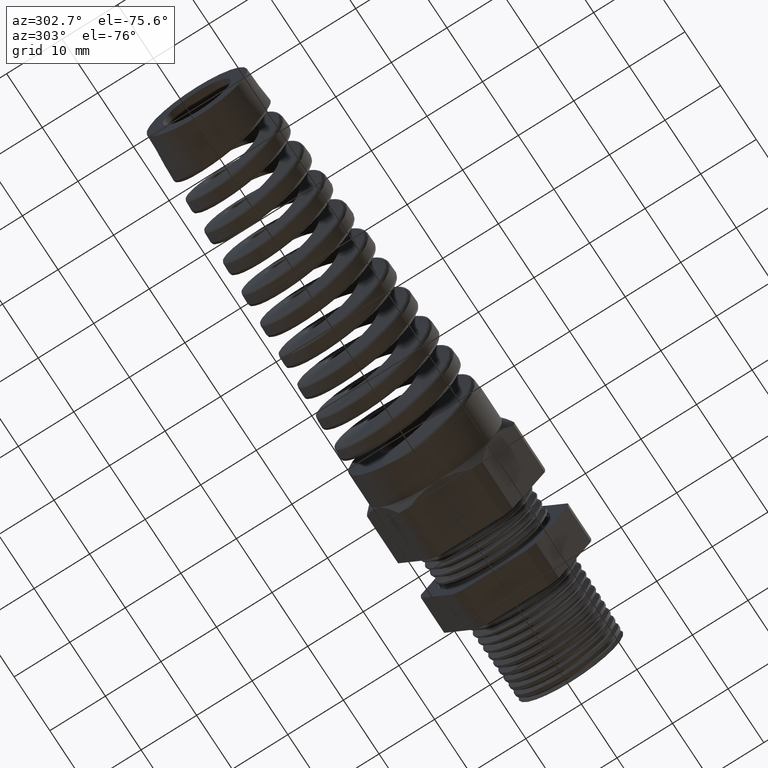
[diagram: clean part render]
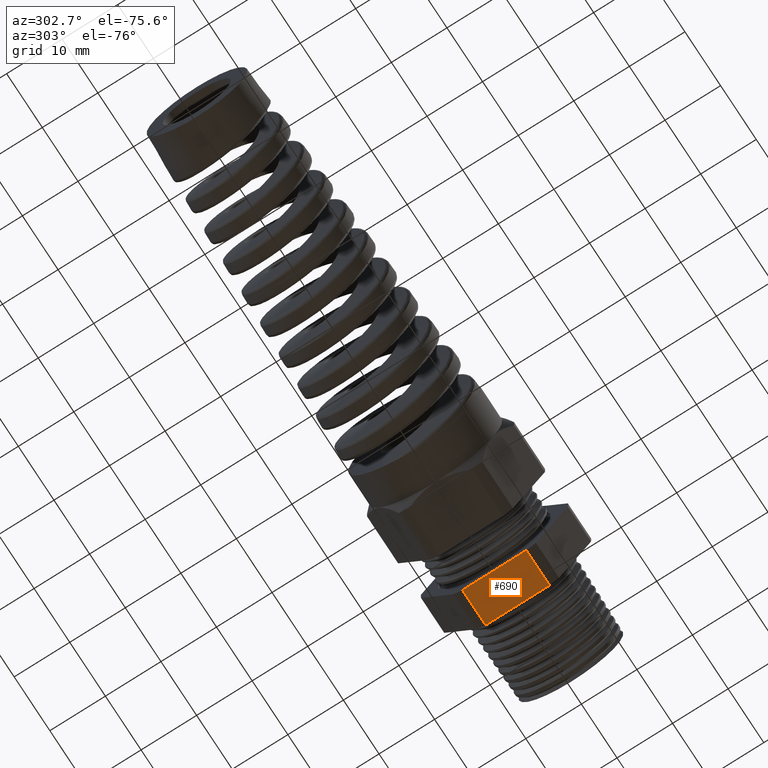
[diagram: same view with one face highlighted and labeled with its STEP entity id]
A machine part, auxiliary view. The second image highlights one B-rep face of the part: STEP entity #690.
In plain terms, the highlighted planar face has unit normal (0, 0, -1).
Its self-contained STEP definition (entity closure, byte-faithful):
#41 = VERTEX_POINT ( 'NONE', #1199 ) ;
#44 = EDGE_CURVE ( 'NONE', #41, #45, #1193, .T. ) ;
#45 = VERTEX_POINT ( 'NONE', #1189 ) ;
#636 = EDGE_CURVE ( 'NONE', #41, #832, #2152, .T. ) ;
#676 = EDGE_LOOP ( 'NONE', ( #691, #692, #693, #695 ) ) ;
#690 = ADVANCED_FACE ( 'NONE', ( #2522 ), #2509, .T. ) ;
#691 = ORIENTED_EDGE ( 'NONE', *, *, #636, .T. ) ;
#692 = ORIENTED_EDGE ( 'NONE', *, *, #845, .F. ) ;
#693 = ORIENTED_EDGE ( 'NONE', *, *, #694, .F. ) ;
#694 = EDGE_CURVE ( 'NONE', #45, #843, #2504, .T. ) ;
#695 = ORIENTED_EDGE ( 'NONE', *, *, #44, .F. ) ;
#832 = VERTEX_POINT ( 'NONE', #2625 ) ;
#843 = VERTEX_POINT ( 'NONE', #2754 ) ;
#845 = EDGE_CURVE ( 'NONE', #843, #832, #2753, .T. ) ;
#1189 = CARTESIAN_POINT ( 'NONE',  ( -0.3100000000000000000, 0.2264307620443832800, -0.4699999999999999700 ) ) ;
#1190 = DIRECTION ( 'NONE',  ( 0.0000000000000000000, 1.000000000000000000, 0.0000000000000000000 ) ) ;
#1191 = VECTOR ( 'NONE', #1190, 39.37007874015748100 ) ;
#1192 = CARTESIAN_POINT ( 'NONE',  ( -0.3100000000000000000, 0.9399999999999999500, -0.4699999999999999700 ) ) ;
#1193 = LINE ( 'NONE', #1192, #1191 ) ;
#1199 = CARTESIAN_POINT ( 'NONE',  ( -0.3100000000000000000, -0.2264307620443832300, -0.4699999999999999700 ) ) ;
#2144 = DIRECTION ( 'NONE',  ( -1.000000000000000000, 0.0000000000000000000, 0.0000000000000000000 ) ) ;
#2145 = VECTOR ( 'NONE', #2144, 39.37007874015748100 ) ;
#2146 = CARTESIAN_POINT ( 'NONE',  ( 0.2800000000000001400, -0.2264307620443832300, -0.4699999999999999700 ) ) ;
#2152 = LINE ( 'NONE', #2146, #2145 ) ;
#2501 = DIRECTION ( 'NONE',  ( -1.000000000000000000, 0.0000000000000000000, 0.0000000000000000000 ) ) ;
#2502 = VECTOR ( 'NONE', #2501, 39.37007874015748100 ) ;
#2503 = CARTESIAN_POINT ( 'NONE',  ( 0.2800000000000001400, 0.2264307620443832800, -0.4699999999999999700 ) ) ;
#2504 = LINE ( 'NONE', #2503, #2502 ) ;
#2505 = DIRECTION ( 'NONE',  ( -1.000000000000000000, 0.0000000000000000000, 0.0000000000000000000 ) ) ;
#2506 = DIRECTION ( 'NONE',  ( 0.0000000000000000000, 0.0000000000000000000, -1.000000000000000000 ) ) ;
#2507 = CARTESIAN_POINT ( 'NONE',  ( 0.2800000000000001400, 0.2264307620443832300, -0.4699999999999999700 ) ) ;
#2508 = AXIS2_PLACEMENT_3D ( 'NONE', #2507, #2506, #2505 ) ;
#2509 = PLANE ( 'NONE',  #2508 ) ;
#2522 = FACE_OUTER_BOUND ( 'NONE', #676, .T. ) ;
#2625 = CARTESIAN_POINT ( 'NONE',  ( -0.5659055118110235500, -0.2264307620443832300, -0.4699999999999999700 ) ) ;
#2750 = DIRECTION ( 'NONE',  ( 0.0000000000000000000, -1.000000000000000000, 0.0000000000000000000 ) ) ;
#2751 = VECTOR ( 'NONE', #2750, 39.37007874015748100 ) ;
#2752 = CARTESIAN_POINT ( 'NONE',  ( -0.5659055118110235500, 0.9399999999999999500, -0.4699999999999999700 ) ) ;
#2753 = LINE ( 'NONE', #2752, #2751 ) ;
#2754 = CARTESIAN_POINT ( 'NONE',  ( -0.5659055118110235500, 0.2264307620443832800, -0.4699999999999999700 ) ) ;